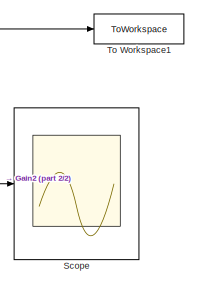
[diagram: root canvas - part 1/2, middle right region]
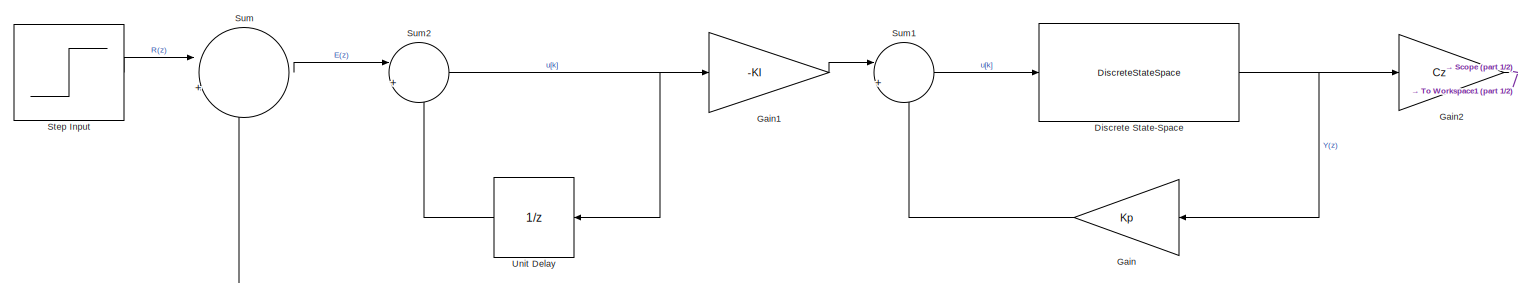
[diagram: root canvas - part 2/2, full width, middle band]
MODEL slx_497ee34af36b
KIND model
CONFIG AbsTol = auto
CONFIG EnableMultiTasking = off
CONFIG FixedStep = auto
CONFIG MaxStep = auto
CONFIG MinStep = auto
CONFIG RelTol = 1e-3
CONFIG SampleTimeConstraint = Unconstrained
CONFIG SolverName = ode45
CONFIG StartTime = 0.0
CONFIG StopTime = 1
BLOCK [DiscreteStateSpace] Discrete State-Space
  A = G
  B = H
  C = eye(3)
  D = zeros(3,1)
  SampleTime = Ts
BLOCK [Gain] Gain
  Gain = Kp
  Multiplication = Matrix(K*u)
  NameLocation = top
BLOCK [Gain] Gain1
  Gain = -KI
BLOCK [Gain] Gain2
  Gain = Cz
  Multiplication = Matrix(K*u)
BLOCK [Scope] Scope
  Floating = off
  NumInputPorts = 1
  Ports = [1]
  ScopeSpecificationString = Simulink.scopes.TimeScopeBlockCfg('CurrentConfiguration', extmgr.ConfigurationSet(extmgr.Configuration('Core','General UI',true),extmgr.Configuration('Core','Source UI',true),extmgr.Configuration('Sources','WiredSimulink',true),extmgr.Configuration('Visuals','Time Domain',true,'SerializedDisplays',{struct('MinYLimReal','-0.00135','MaxYLimReal','0.01213','YLabelReal','','MinYLimMag','0.00000','MaxY...<+1357ch>
BLOCK [Step] Step Input
  After = 0.01
  SampleTime = 0
  Time = 0
BLOCK [Sum] Sum
  Inputs = |+-
  Ports = [2, 1]
BLOCK [Sum] Sum1
  Inputs = |+-
  Ports = [2, 1]
BLOCK [Sum] Sum2
  Inputs = |++
  Ports = [2, 1]
BLOCK [ToWorkspace] To Workspace1
  FixptAsFi = on
  MaxDataPoints = inf
  Ports = [1]
  SampleTime = -1
  SaveFormat = Timeseries
  VariableName = Y_servo
BLOCK [UnitDelay] Unit Delay
  HasFrameUpgradeWarning = on
  NameLocation = top
  SampleTime = -1
NET Discrete State-Space:1 -> Gain2:1, Gain:1
LINE Gain1:1 -> Sum1:1
NET Gain2:1 -> Scope:1, Sum:2, To Workspace1:1
LINE Gain:1 -> Sum1:2
LINE Step Input:1 -> Sum:1
LINE Sum1:1 -> Discrete State-Space:1
NET Sum2:1 -> Gain1:1, Unit Delay:1
LINE Sum:1 -> Sum2:1
LINE Unit Delay:1 -> Sum2:2
note: NET lines group one-source signal fan-out (src -> all destinations, sorted); 1:1 wires keep LINE
